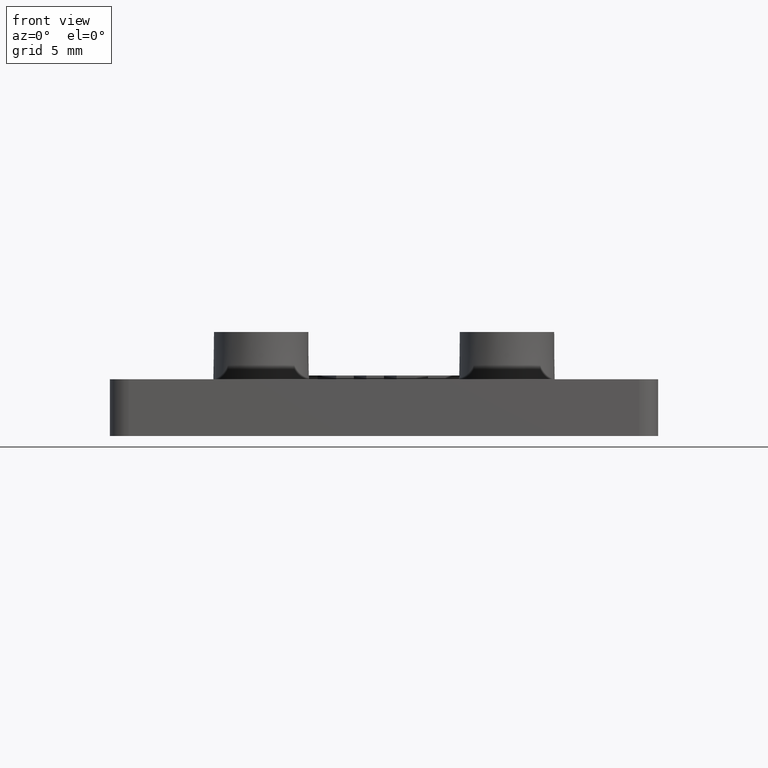
[diagram: clean part render]
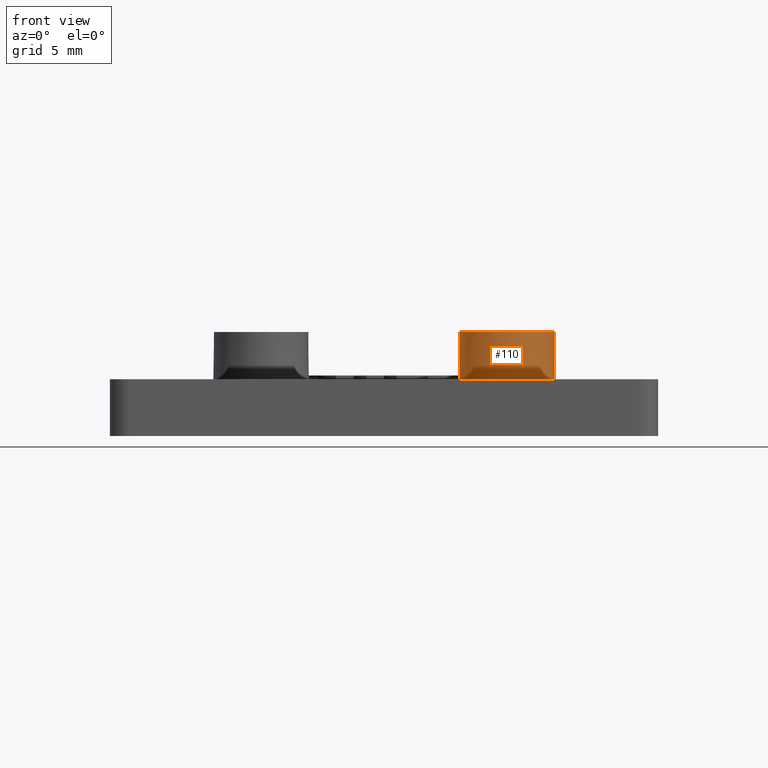
[diagram: same view with one face highlighted and labeled with its STEP entity id]
A machine part, front view. The second image highlights one B-rep face of the part: STEP entity #110.
In plain terms, the highlighted conical surface has half-angle 1 deg.
Its self-contained STEP definition (entity closure, byte-faithful):
#110 = ADVANCED_FACE( '', ( #216, #217 ), #218, .T. );
#216 = FACE_OUTER_BOUND( '', #349, .T. );
#217 = FACE_BOUND( '', #350, .T. );
#218 = CONICAL_SURFACE( '', #351, 2.50000000000000, 0.0174532925199433 );
#349 = EDGE_LOOP( '', ( #707 ) );
#350 = EDGE_LOOP( '', ( #708 ) );
#351 = AXIS2_PLACEMENT_3D( '', #709, #710, #711 );
#707 = ORIENTED_EDGE( '', *, *, #902, .F. );
#708 = ORIENTED_EDGE( '', *, *, #1011, .T. );
#709 = CARTESIAN_POINT( '', ( 6.50000000000000, 3.36766747301153E-016, 5.49999999999999 ) );
#710 = DIRECTION( '', ( 0.000000000000000, -6.12303176911189E-017, -1.00000000000000 ) );
#711 = DIRECTION( '', ( 0.000000000000000, 1.00000000000000, -6.12303176911189E-017 ) );
#902 = EDGE_CURVE( '', #1070, #1070, #1071, .T. );
#1011 = EDGE_CURVE( '', #1257, #1257, #1258, .T. );
#1070 = VERTEX_POINT( '', #1333 );
#1071 = CIRCLE( '', #1334, 2.54363766232054 );
#1257 = VERTEX_POINT( '', #1620 );
#1258 = CIRCLE( '', #1621, 2.50000000000000 );
#1333 = CARTESIAN_POINT( '', ( 6.50000000000000, 2.54363766232054, 2.99999999999999 ) );
#1334 = AXIS2_PLACEMENT_3D( '', #1688, #1689, #1690 );
#1620 = CARTESIAN_POINT( '', ( 9.00000000000000, 4.89842541528950E-016, 5.49999999999999 ) );
#1621 = AXIS2_PLACEMENT_3D( '', #1815, #1816, #1817 );
#1688 = CARTESIAN_POINT( '', ( 6.50000000000000, 1.83690953073356E-016, 2.99999999999999 ) );
#1689 = DIRECTION( '', ( 0.000000000000000, -6.12303176911189E-017, -1.00000000000000 ) );
#1690 = DIRECTION( '', ( 0.000000000000000, 1.00000000000000, -6.12303176911189E-017 ) );
#1815 = CARTESIAN_POINT( '', ( 6.50000000000000, 3.36766747301153E-016, 5.49999999999999 ) );
#1816 = DIRECTION( '', ( -4.37905770101505E-049, -6.12303176911189E-017, -1.00000000000000 ) );
#1817 = DIRECTION( '', ( 1.00000000000000, 6.12303176911189E-017, -3.74915180455534E-033 ) );